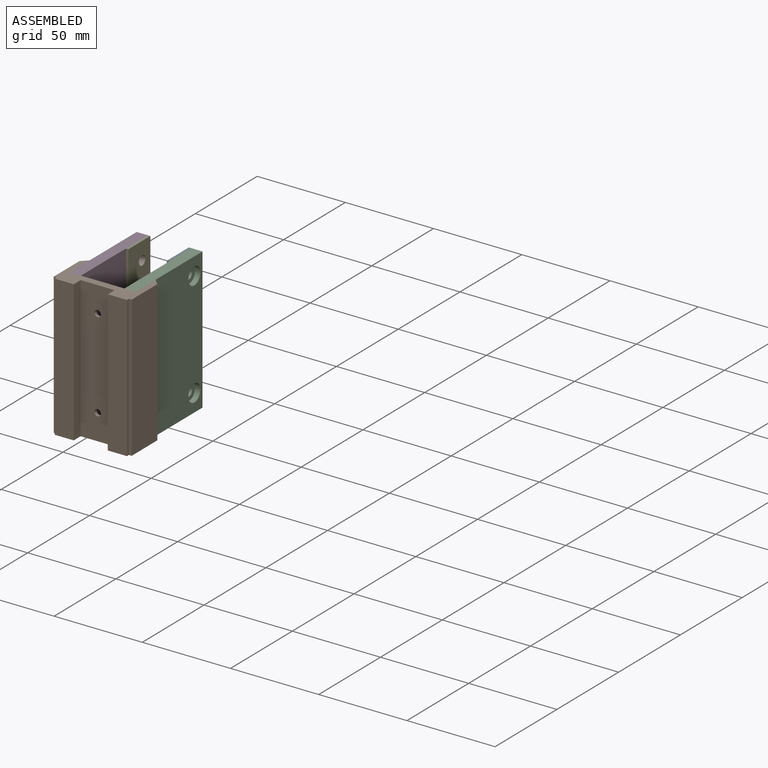
[diagram: assembled view]
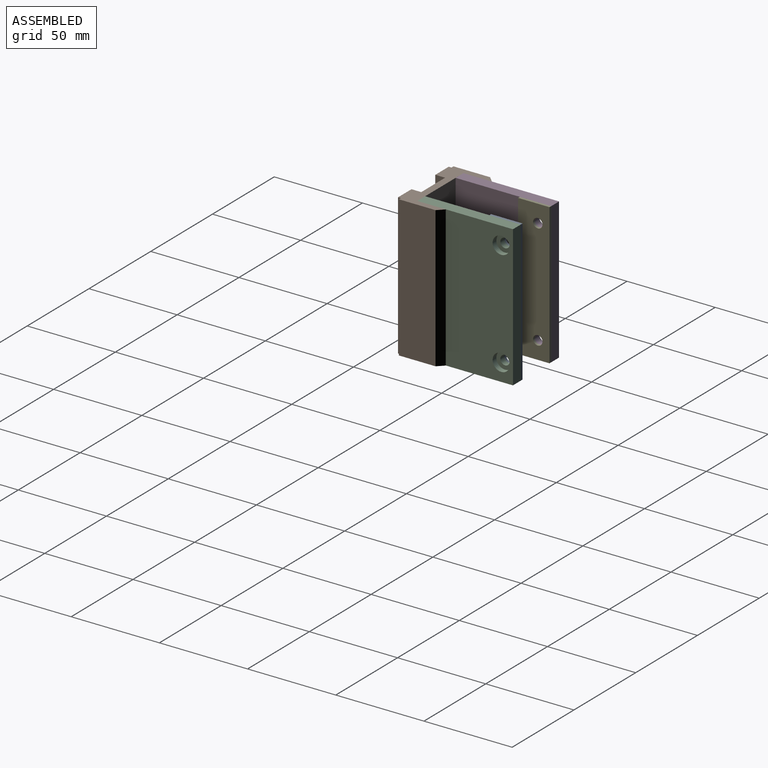
[diagram: assembled view, second angle]
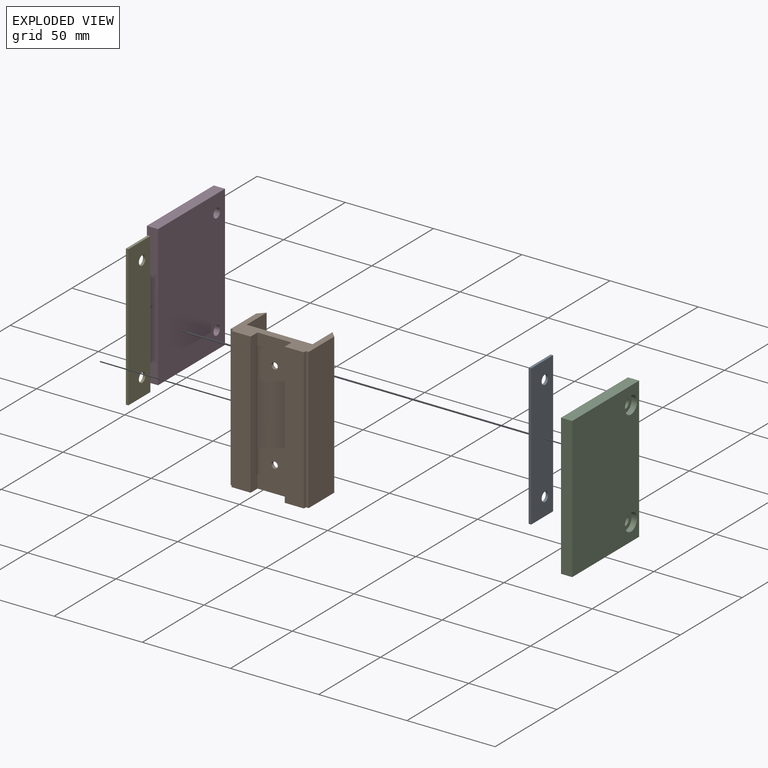
[diagram: exploded view]
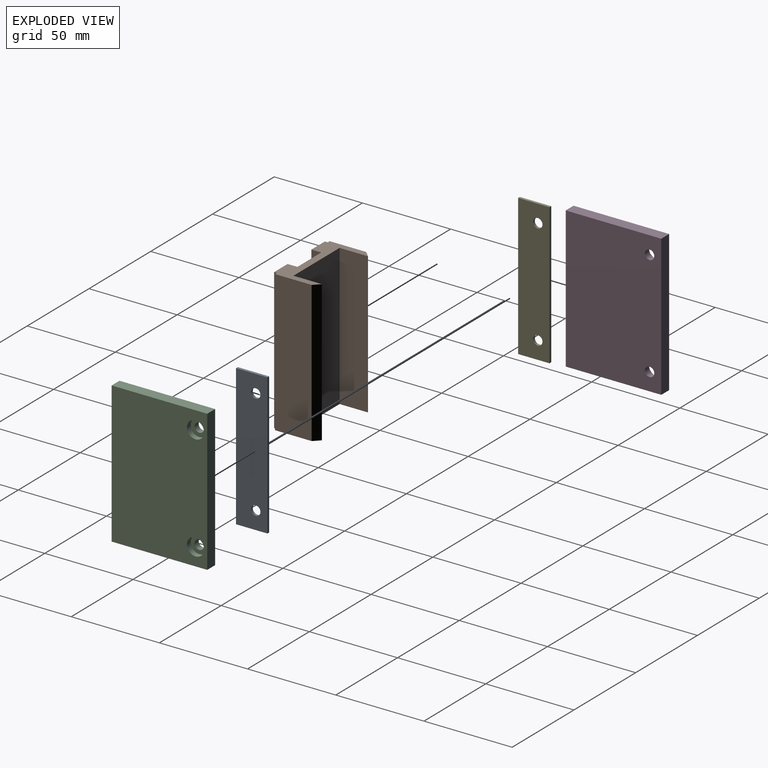
[diagram: exploded view, second angle]
ASSEMBLY  parts=5 mates=12
PART A: 8 faces, bbox 1.4x17.8x80 mm
  f0: plane 80x17.8mm, normal (-1,0,0), area 1379.7mm2, adj f1,f3,f4,f5,f6,f7
  f1: plane 80x1.4mm, normal (0,-1,0), area 111.8mm2, adj f0,f2,f4,f5
  f2: plane 80x17.8mm, normal (1,0,0), area 1379.7mm2, adj f1,f3,f4,f5,f6,f7
  f3: plane 80x1.4mm, normal (0,1,0), area 111.8mm2, adj f0,f2,f4,f5
  f4: plane 17.8x1.4mm, normal (0,0,1), area 24.9mm2, adj f0,f1,f2,f3
  f5: plane 17.8x1.4mm, normal (0,0,-1), area 24.9mm2, adj f0,f1,f2,f3
  f6: cylinder r=2.65mm len=5.31mm, axis (-1,0,0), area 23.3mm2, adj f0,f2
  f7: cylinder r=2.65mm len=5.31mm, axis (-1,0,0), area 23.3mm2, adj f0,f2
PART B: 22 faces, bbox 44.2x25.8x80 mm
  f0: plane 80.01x20.76mm, normal (-1,0,0), area 1661.4mm2, adj f1,f14,f15,f20
  f1: plane 80.01x1.59mm, normal (0,-1,0), area 127mm2, adj f0,f2,f14,f15
  f2: plane 80.01x1.59mm, normal (-1,0,0), area 127mm2, adj f1,f3,f14,f15
  f3: plane 80.01x10.86mm, normal (0,-1,0), area 868.8mm2, adj f2,f4,f14,f15
  f4: plane 80.01x5.56mm, normal (1,0,0), area 445.1mm2, adj f3,f5,f14,f15
  f5: plane 80.01x19.3mm, normal (0,-1,0), area 1523.5mm2, adj f4,f6,f14,f15,f16,f18
  f6: plane 80.01x5.56mm, normal (-1,0,0), area 445.1mm2, adj f5,f7,f14,f15
  f7: plane 80.01x10.86mm, normal (0,-1,0), area 868.8mm2, adj f6,f8,f14,f15
  f8: plane 80.01x1.59mm, normal (1,0,0), area 127mm2, adj f7,f9,f14,f15
  f9: plane 80.01x1.59mm, normal (0,-1,0), area 127mm2, adj f8,f10,f14,f15
  f10: plane 80.01x20.76mm, normal (1,0,0), area 1661.4mm2, adj f9,f14,f15,f21
  f11: plane 80.01x16.13mm, normal (-1,0,0), area 1290.5mm2, adj f12,f14,f15,f21
  f12: plane 80.01x37.34mm, normal (0,1,0), area 2891.9mm2, adj f11,f13,f14,f15,f17,f19
  f13: plane 80.01x16.13mm, normal (1,0,0), area 1290.5mm2, adj f12,f14,f15,f20
  f14: plane 44.2x25.78mm, normal (0,0,1), area 413mm2, adj f0,f1,f2,f3,f4,f5,f6,f7
  f15: plane 44.2x25.78mm, normal (0,0,-1), area 413mm2, adj f0,f1,f2,f3,f4,f5,f6,f7
  f16: cylinder r=1.83mm len=3.66mm, axis (0,1,0), area 19.6mm2, adj f5,f17
  f17: cone r=1.83mm half-angle=41deg, axis (0,1,0), area 56.8mm2, adj f12,f16
  f18: cylinder r=1.83mm len=3.66mm, axis (0,1,0), area 19.6mm2, adj f5,f19
  f19: cone r=1.83mm half-angle=41deg, axis (0,1,0), area 56.8mm2, adj f12,f18
  f20: plane 80.01x3.43mm, normal (-0.71,0.71,0), area 388mm2, adj f0,f13,f14,f15
  f21: plane 80.01x3.43mm, normal (0.71,0.71,0), area 388mm2, adj f10,f11,f14,f15
PART C: 12 faces, bbox 6.4x54.2x80 mm
  f0: plane 80x6.35mm, normal (0,-1,0), area 508mm2, adj f1,f2,f3,f4
  f1: plane 80x54.19mm, normal (1,0,0), area 4185.9mm2, adj f0,f3,f4,f7,f10,f11
  f2: plane 80x54.19mm, normal (-1,0,0), area 4291.1mm2, adj f0,f3,f4,f5,f8,f11
  f3: plane 54.19x6.35mm, normal (0,0,1), area 344.1mm2, adj f0,f1,f2,f11
  f4: plane 54.19x6.35mm, normal (0,0,-1), area 344.1mm2, adj f0,f1,f2,f11
  f5: cylinder r=2.65mm len=5.3mm, axis (1,0,0), area 55mm2, adj f2,f6
  f6: plane 9.75x9.75mm, normal (1,0,0), area 52.6mm2, adj f5,f7
  f7: cylinder r=4.88mm len=9.75mm, axis (1,0,0), area 93.4mm2, adj f1,f6
  f8: cylinder r=2.65mm len=5.3mm, axis (1,0,0), area 55mm2, adj f2,f9
  f9: plane 9.75x9.75mm, normal (1,0,0), area 52.6mm2, adj f8,f10
  f10: cylinder r=4.88mm len=9.75mm, axis (1,0,0), area 93.4mm2, adj f1,f9
  f11: plane 80x6.35mm, normal (0,1,0), area 508mm2, adj f1,f2,f3,f4
PART D: same geometry as C
PART E: same geometry as A
PLACE A t=(-22.74,58.97,-22.33)mm
PLACE B t=(-41.6,-39.5,-22.34)mm fixed
PLACE C rot(axis=(-1,0,0),180deg) t=(-22.93,-28.1,57.67)mm
PLACE D rot(axis=(0,0,1),180deg) t=(-60.27,-28.1,-22.33)mm
PLACE E t=(-45.98,58.97,-22.33)mm
MATE parallel E.f3 <-> D.f0  axis (0,1,0) through (-53.22,24.33,17.67)mm
MATE planar C.f1 <-> B.f11  axis (1,0,0) through (-22.93,-3.48,17.67)mm
MATE planar B.f12 <-> D.f11  axis (0,1,0) through (-41.6,-29.85,17.67)mm
MATE planar A.f2 <-> C.f2  axis (1,0,0) through (-29.28,15.36,17.67)mm
MATE planar D.f3 <-> B.f14  axis (0,0,1) through (-57.09,-2.75,57.67)mm
MATE planar E.f0 <-> D.f2  axis (-1,0,0) through (-53.92,15.36,17.67)mm
MATE cylindrical E.f6 <-> D.f8  axis (1,0,0) through (-52.52,17.7,47.67)mm
MATE parallel A.f5 <-> C.f3  axis (0,0,-1) through (-29.98,15.43,-22.33)mm
MATE planar D.f1 <-> B.f13  axis (-1,0,0) through (-60.27,-3.48,17.67)mm
MATE planar B.f12 <-> C.f11  axis (0,1,0) through (-41.6,-29.85,17.67)mm
MATE planar C.f4 <-> B.f14  axis (0,0,1) through (-26.1,-2.75,57.67)mm
MATE cylindrical A.f6 <-> C.f5  axis (-1,0,0) through (-30.68,17.7,47.67)mm
